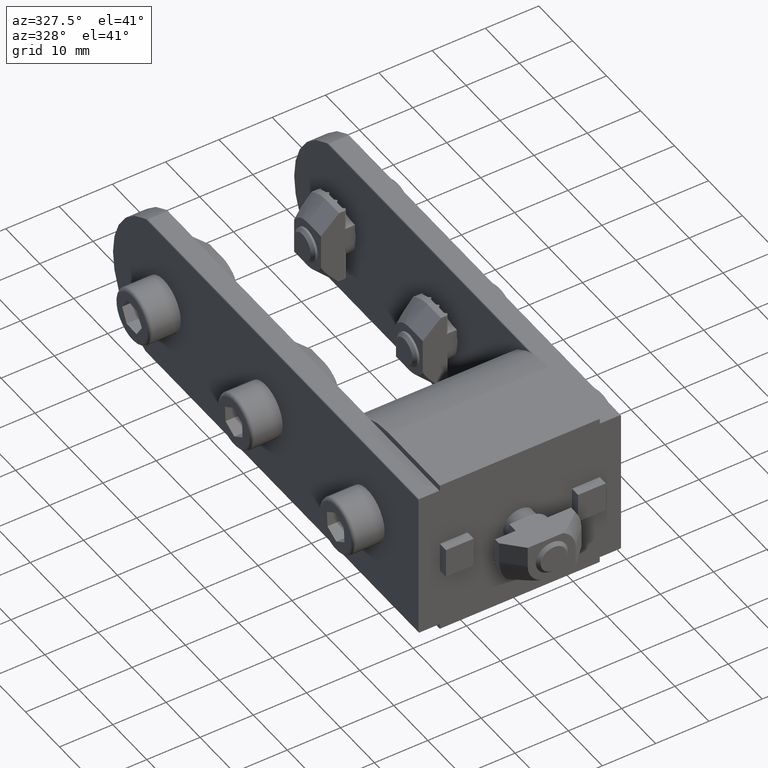
[diagram: clean part render]
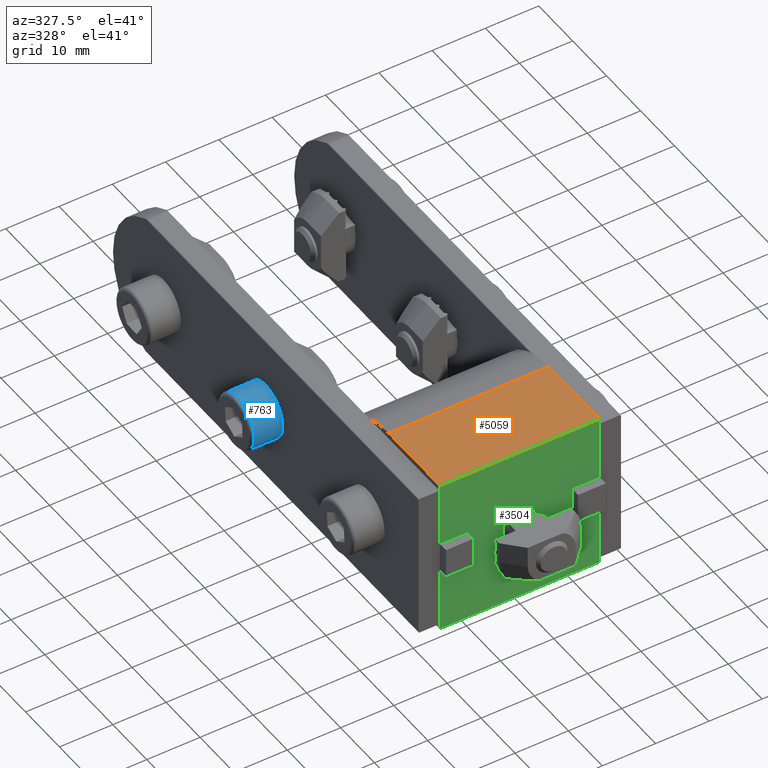
[diagram: same view with three faces highlighted in distinct colors, each labeled with its STEP entity id]
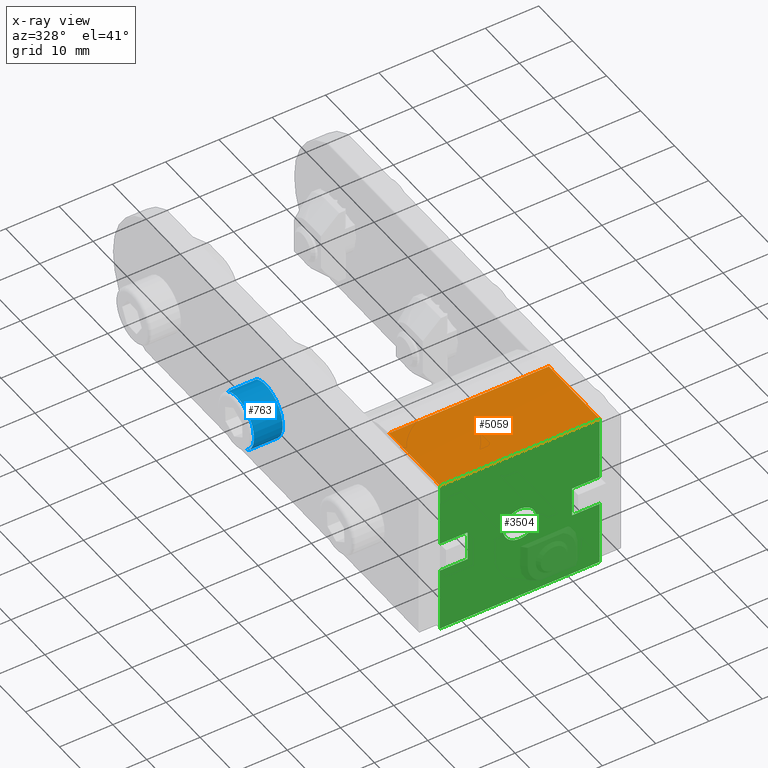
[diagram: x-ray of the same camera — body ghosted, the three highlighted faces saturated]
A machine part, auxiliary view with three faces highlighted in distinct colors.
The next image is the same camera in x-ray (body ghosted, the three faces saturated) — at least one of them is partly hidden behind the body in this view.
Their STEP definitions:

[orange] entity #5059 — the highlighted planar face has unit normal (0, -0, -1).
#673 = CARTESIAN_POINT ( 'NONE',  ( -15.00000000000000355, -7.500000000000000000, 0.000000000000000000 ) ) ;
#706 = CARTESIAN_POINT ( 'NONE',  ( -15.00000000000000355, 7.500000000000000000, 30.00000000000000000 ) ) ;
#787 = VECTOR ( 'NONE', #5470, 1000.000000000000000 ) ;
#793 = DIRECTION ( 'NONE',  ( 1.000000000000000000, 0.000000000000000000, 0.000000000000000000 ) ) ;
#876 = FACE_OUTER_BOUND ( 'NONE', #4983, .T. ) ;
#1312 = CARTESIAN_POINT ( 'NONE',  ( -15.00000000000000355, -7.500000000000000000, 30.00000000000000000 ) ) ;
#1337 = VECTOR ( 'NONE', #3285, 1000.000000000000000 ) ;
#1485 = ORIENTED_EDGE ( 'NONE', *, *, #2843, .F. ) ;
#1539 = LINE ( 'NONE', #4168, #1337 ) ;
#2032 = DIRECTION ( 'NONE',  ( -0.000000000000000000, -1.000000000000000000, -0.000000000000000000 ) ) ;
#2395 = CARTESIAN_POINT ( 'NONE',  ( -15.00000000000000355, -7.500000000000000000, 0.000000000000000000 ) ) ;
#2626 = VERTEX_POINT ( 'NONE', #706 ) ;
#2843 = EDGE_CURVE ( 'NONE', #3542, #4150, #1539, .T. ) ;
#2954 = CARTESIAN_POINT ( 'NONE',  ( -15.00000000000000355, 7.500000000000000000, 0.000000000000000000 ) ) ;
#3122 = CARTESIAN_POINT ( 'NONE',  ( -15.00000000000000355, -7.500000000000000000, 30.00000000000000000 ) ) ;
#3285 = DIRECTION ( 'NONE',  ( -0.000000000000000000, -0.000000000000000000, -1.000000000000000000 ) ) ;
#3499 = EDGE_CURVE ( 'NONE', #2626, #3542, #5245, .T. ) ;
#3505 = ORIENTED_EDGE ( 'NONE', *, *, #3499, .F. ) ;
#3542 = VERTEX_POINT ( 'NONE', #3122 ) ;
#3728 = LINE ( 'NONE', #5021, #787 ) ;
#3837 = PLANE ( 'NONE',  #4349 ) ;
#4150 = VERTEX_POINT ( 'NONE', #2395 ) ;
#4168 = CARTESIAN_POINT ( 'NONE',  ( -15.00000000000000355, -7.500000000000000000, 30.00000000000000000 ) ) ;
#4262 = ORIENTED_EDGE ( 'NONE', *, *, #5395, .T. ) ;
#4349 = AXIS2_PLACEMENT_3D ( 'NONE', #5672, #793, #5611 ) ;
#4455 = VECTOR ( 'NONE', #2032, 1000.000000000000000 ) ;
#4551 = VERTEX_POINT ( 'NONE', #2954 ) ;
#4586 = LINE ( 'NONE', #673, #4455 ) ;
#4741 = ORIENTED_EDGE ( 'NONE', *, *, #5493, .T. ) ;
#4806 = VECTOR ( 'NONE', #5487, 1000.000000000000000 ) ;
#4983 = EDGE_LOOP ( 'NONE', ( #4262, #1485, #3505, #4741 ) ) ;
#5021 = CARTESIAN_POINT ( 'NONE',  ( -15.00000000000000355, 7.500000000000000000, 30.00000000000000000 ) ) ;
#5059 = ADVANCED_FACE ( 'NONE', ( #876 ), #3837, .F. ) ;
#5245 = LINE ( 'NONE', #1312, #4806 ) ;
#5395 = EDGE_CURVE ( 'NONE', #4551, #4150, #4586, .T. ) ;
#5470 = DIRECTION ( 'NONE',  ( -0.000000000000000000, -0.000000000000000000, -1.000000000000000000 ) ) ;
#5487 = DIRECTION ( 'NONE',  ( -0.000000000000000000, -1.000000000000000000, -0.000000000000000000 ) ) ;
#5493 = EDGE_CURVE ( 'NONE', #2626, #4551, #3728, .T. ) ;
#5611 = DIRECTION ( 'NONE',  ( 0.000000000000000000, 0.000000000000000000, -1.000000000000000000 ) ) ;
#5672 = CARTESIAN_POINT ( 'NONE',  ( -15.00000000000000355, -7.500000000000000000, 30.00000000000000000 ) ) ;

[blue] entity #763 — the highlighted cylindrical surface (edge-blend (fillet) strip) has radius 5 mm, axis along (-1, -0, -0).
#153 = DIRECTION ( 'NONE',  ( 0.000000000000000000, 0.000000000000000000, 1.000000000000000000 ) ) ;
#351 = ORIENTED_EDGE ( 'NONE', *, *, #1939, .T. ) ;
#396 = CARTESIAN_POINT ( 'NONE',  ( -311.3400589040639375, 141.7785353260753709, 199.8677432571120960 ) ) ;
#418 = FACE_OUTER_BOUND ( 'NONE', #2535, .T. ) ;
#455 = VECTOR ( 'NONE', #4907, 1000.000000000000000 ) ;
#546 = ORIENTED_EDGE ( 'NONE', *, *, #4773, .T. ) ;
#763 = ADVANCED_FACE ( 'NONE', ( #418 ), #5194, .T. ) ;
#852 = DIRECTION ( 'NONE',  ( 0.000000000000000000, 0.000000000000000000, 1.000000000000000000 ) ) ;
#978 = CARTESIAN_POINT ( 'NONE',  ( -305.9400589040640170, 141.7785353260753709, 189.8677432571120960 ) ) ;
#987 = EDGE_CURVE ( 'NONE', #2103, #3142, #2690, .T. ) ;
#1151 = AXIS2_PLACEMENT_3D ( 'NONE', #5601, #2504, #4744 ) ;
#1265 = CARTESIAN_POINT ( 'NONE',  ( -311.3400589040639375, 141.7785353260753709, 189.8677432571120960 ) ) ;
#1402 = ORIENTED_EDGE ( 'NONE', *, *, #987, .F. ) ;
#1413 = AXIS2_PLACEMENT_3D ( 'NONE', #3013, #1775, #852 ) ;
#1576 = VERTEX_POINT ( 'NONE', #1265 ) ;
#1775 = DIRECTION ( 'NONE',  ( -1.000000000000000000, 0.000000000000000000, 0.000000000000000000 ) ) ;
#1939 = EDGE_CURVE ( 'NONE', #2103, #5182, #3990, .T. ) ;
#2103 = VERTEX_POINT ( 'NONE', #4251 ) ;
#2504 = DIRECTION ( 'NONE',  ( 1.000000000000000000, -0.000000000000000000, -0.000000000000000000 ) ) ;
#2535 = EDGE_LOOP ( 'NONE', ( #351, #546, #4993, #1402 ) ) ;
#2690 = LINE ( 'NONE', #3646, #4478 ) ;
#2953 = EDGE_CURVE ( 'NONE', #1576, #3142, #3075, .T. ) ;
#3013 = CARTESIAN_POINT ( 'NONE',  ( -305.9400589040640170, 141.7785353260753709, 194.8677432571120960 ) ) ;
#3074 = AXIS2_PLACEMENT_3D ( 'NONE', #4921, #3566, #153 ) ;
#3075 = CIRCLE ( 'NONE', #1151, 5.000000000000004441 ) ;
#3142 = VERTEX_POINT ( 'NONE', #396 ) ;
#3222 = LINE ( 'NONE', #978, #455 ) ;
#3566 = DIRECTION ( 'NONE',  ( -1.000000000000000000, 0.000000000000000000, 0.000000000000000000 ) ) ;
#3646 = CARTESIAN_POINT ( 'NONE',  ( -305.9400589040640170, 141.7785353260753709, 199.8677432571120960 ) ) ;
#3990 = CIRCLE ( 'NONE', #3074, 5.000000000000004441 ) ;
#4251 = CARTESIAN_POINT ( 'NONE',  ( -305.9400589040640170, 141.7785353260753709, 199.8677432571120960 ) ) ;
#4478 = VECTOR ( 'NONE', #5365, 1000.000000000000000 ) ;
#4744 = DIRECTION ( 'NONE',  ( 0.000000000000000000, 0.000000000000000000, 1.000000000000000000 ) ) ;
#4773 = EDGE_CURVE ( 'NONE', #5182, #1576, #3222, .T. ) ;
#4782 = CARTESIAN_POINT ( 'NONE',  ( -305.9400589040640170, 141.7785353260753709, 189.8677432571120960 ) ) ;
#4907 = DIRECTION ( 'NONE',  ( -1.000000000000000000, 0.000000000000000000, 0.000000000000000000 ) ) ;
#4921 = CARTESIAN_POINT ( 'NONE',  ( -305.9400589040640170, 141.7785353260753709, 194.8677432571120960 ) ) ;
#4993 = ORIENTED_EDGE ( 'NONE', *, *, #2953, .T. ) ;
#5182 = VERTEX_POINT ( 'NONE', #4782 ) ;
#5194 = CYLINDRICAL_SURFACE ( 'NONE', #1413, 5.000000000000004441 ) ;
#5365 = DIRECTION ( 'NONE',  ( -1.000000000000000000, 0.000000000000000000, 0.000000000000000000 ) ) ;
#5601 = CARTESIAN_POINT ( 'NONE',  ( -311.3400589040639375, 141.7785353260753709, 194.8677432571120960 ) ) ;

[green] entity #3504 — the highlighted planar face has unit normal (0, 1, -0).
#35 = EDGE_CURVE ( 'NONE', #560, #4866, #4142, .T. ) ;
#73 = ORIENTED_EDGE ( 'NONE', *, *, #710, .T. ) ;
#94 = DIRECTION ( 'NONE',  ( 0.000000000000000000, 0.000000000000000000, -1.000000000000000000 ) ) ;
#124 = EDGE_CURVE ( 'NONE', #2697, #5384, #4690, .T. ) ;
#149 = EDGE_CURVE ( 'NONE', #4336, #2426, #4743, .T. ) ;
#295 = ORIENTED_EDGE ( 'NONE', *, *, #149, .F. ) ;
#321 = DIRECTION ( 'NONE',  ( 1.000000000000000000, 0.000000000000000000, 0.000000000000000000 ) ) ;
#329 = ORIENTED_EDGE ( 'NONE', *, *, #5543, .F. ) ;
#340 = VECTOR ( 'NONE', #2549, 1000.000000000000000 ) ;
#352 = VECTOR ( 'NONE', #3307, 1000.000000000000000 ) ;
#378 = EDGE_CURVE ( 'NONE', #4866, #560, #445, .T. ) ;
#391 = VECTOR ( 'NONE', #1769, 1000.000000000000000 ) ;
#399 = CARTESIAN_POINT ( 'NONE',  ( -2.800000000000005151, -7.500000000000000000, 24.79999999999999716 ) ) ;
#445 = CIRCLE ( 'NONE', #1936, 3.124999999999999112 ) ;
#497 = ORIENTED_EDGE ( 'NONE', *, *, #1652, .T. ) ;
#506 = FACE_BOUND ( 'NONE', #2220, .T. ) ;
#560 = VERTEX_POINT ( 'NONE', #5084 ) ;
#566 = CARTESIAN_POINT ( 'NONE',  ( -2.800000000000007372, -7.500000000000000000, 30.00000000000000000 ) ) ;
#710 = EDGE_CURVE ( 'NONE', #4609, #3049, #5279, .T. ) ;
#761 = CARTESIAN_POINT ( 'NONE',  ( -2.800000000000005151, -7.500000000000000000, 24.79999999999999716 ) ) ;
#848 = ORIENTED_EDGE ( 'NONE', *, *, #2843, .T. ) ;
#898 = VECTOR ( 'NONE', #4122, 1000.000000000000000 ) ;
#1130 = DIRECTION ( 'NONE',  ( 1.000000000000000000, 0.000000000000000000, 0.000000000000000000 ) ) ;
#1337 = VECTOR ( 'NONE', #3285, 1000.000000000000000 ) ;
#1342 = CARTESIAN_POINT ( 'NONE',  ( 14.99999999999999645, -7.500000000000000000, 30.00000000000000000 ) ) ;
#1401 = PLANE ( 'NONE',  #3424 ) ;
#1539 = LINE ( 'NONE', #4168, #1337 ) ;
#1625 = LINE ( 'NONE', #5149, #3119 ) ;
#1652 = EDGE_CURVE ( 'NONE', #4150, #4419, #5095, .T. ) ;
#1670 = AXIS2_PLACEMENT_3D ( 'NONE', #3665, #3177, #94 ) ;
#1765 = ORIENTED_EDGE ( 'NONE', *, *, #35, .F. ) ;
#1769 = DIRECTION ( 'NONE',  ( 1.000000000000000000, 0.000000000000000000, 0.000000000000000000 ) ) ;
#1806 = VERTEX_POINT ( 'NONE', #399 ) ;
#1889 = VECTOR ( 'NONE', #2765, 1000.000000000000000 ) ;
#1900 = DIRECTION ( 'NONE',  ( 0.000000000000000000, 1.000000000000000000, 0.000000000000000000 ) ) ;
#1912 = CARTESIAN_POINT ( 'NONE',  ( 2.799999999999999822, -7.500000000000000000, 5.200000000000001066 ) ) ;
#1936 = AXIS2_PLACEMENT_3D ( 'NONE', #2789, #1940, #4132 ) ;
#1940 = DIRECTION ( 'NONE',  ( 0.000000000000000000, -1.000000000000000000, 0.000000000000000000 ) ) ;
#1957 = EDGE_LOOP ( 'NONE', ( #4090, #2940, #2541, #73, #5509, #3759, #295, #4007, #329, #4688, #848, #497 ) ) ;
#2102 = CARTESIAN_POINT ( 'NONE',  ( 14.99999999999999645, -7.500000000000000000, 0.000000000000000000 ) ) ;
#2162 = LINE ( 'NONE', #761, #2611 ) ;
#2167 = LINE ( 'NONE', #1342, #2980 ) ;
#2220 = EDGE_LOOP ( 'NONE', ( #2637, #1765 ) ) ;
#2283 = VECTOR ( 'NONE', #1130, 1000.000000000000000 ) ;
#2395 = CARTESIAN_POINT ( 'NONE',  ( -15.00000000000000355, -7.500000000000000000, 0.000000000000000000 ) ) ;
#2415 = CARTESIAN_POINT ( 'NONE',  ( 2.799999999999999822, -7.500000000000000000, 24.79999999999999716 ) ) ;
#2426 = VERTEX_POINT ( 'NONE', #2689 ) ;
#2459 = CARTESIAN_POINT ( 'NONE',  ( -2.800000000000000711, -7.500000000000000000, 5.200000000000001066 ) ) ;
#2541 = ORIENTED_EDGE ( 'NONE', *, *, #3305, .F. ) ;
#2549 = DIRECTION ( 'NONE',  ( 1.000000000000000000, 0.000000000000000000, 0.000000000000000000 ) ) ;
#2572 = EDGE_CURVE ( 'NONE', #5384, #4419, #3213, .T. ) ;
#2611 = VECTOR ( 'NONE', #4263, 1000.000000000000000 ) ;
#2637 = ORIENTED_EDGE ( 'NONE', *, *, #378, .F. ) ;
#2689 = CARTESIAN_POINT ( 'NONE',  ( 2.800000000000000266, -7.500000000000000000, 30.00000000000000000 ) ) ;
#2697 = VERTEX_POINT ( 'NONE', #4698 ) ;
#2763 = CARTESIAN_POINT ( 'NONE',  ( 14.99999999999999645, -7.500000000000000000, 30.00000000000000000 ) ) ;
#2765 = DIRECTION ( 'NONE',  ( -2.502005013428087080E-16, -0.000000000000000000, 1.000000000000000000 ) ) ;
#2789 = CARTESIAN_POINT ( 'NONE',  ( -3.469446951953614189E-15, -7.500000000000000000, 15.00000000000000000 ) ) ;
#2843 = EDGE_CURVE ( 'NONE', #3542, #4150, #1539, .T. ) ;
#2940 = ORIENTED_EDGE ( 'NONE', *, *, #124, .F. ) ;
#2980 = VECTOR ( 'NONE', #5270, 1000.000000000000000 ) ;
#3049 = VERTEX_POINT ( 'NONE', #2102 ) ;
#3119 = VECTOR ( 'NONE', #321, 1000.000000000000000 ) ;
#3122 = CARTESIAN_POINT ( 'NONE',  ( -15.00000000000000355, -7.500000000000000000, 30.00000000000000000 ) ) ;
#3149 = CARTESIAN_POINT ( 'NONE',  ( -2.800000000000005151, -7.500000000000000000, 24.79999999999999716 ) ) ;
#3177 = DIRECTION ( 'NONE',  ( 0.000000000000000000, -1.000000000000000000, 0.000000000000000000 ) ) ;
#3213 = LINE ( 'NONE', #2459, #898 ) ;
#3246 = CARTESIAN_POINT ( 'NONE',  ( -3.469446951953614189E-15, -7.500000000000000000, 11.87500000000000000 ) ) ;
#3285 = DIRECTION ( 'NONE',  ( -0.000000000000000000, -0.000000000000000000, -1.000000000000000000 ) ) ;
#3305 = EDGE_CURVE ( 'NONE', #4609, #2697, #4084, .T. ) ;
#3307 = DIRECTION ( 'NONE',  ( 2.502005013428085600E-16, 0.000000000000000000, 1.000000000000000000 ) ) ;
#3337 = CARTESIAN_POINT ( 'NONE',  ( -15.00000000000000355, -7.500000000000000000, 0.000000000000000000 ) ) ;
#3390 = DIRECTION ( 'NONE',  ( -1.000000000000000000, -0.000000000000000000, -1.548860246407863336E-16 ) ) ;
#3424 = AXIS2_PLACEMENT_3D ( 'NONE', #3973, #1900, #4843 ) ;
#3504 = ADVANCED_FACE ( 'NONE', ( #506, #5271 ), #1401, .F. ) ;
#3542 = VERTEX_POINT ( 'NONE', #3122 ) ;
#3558 = VERTEX_POINT ( 'NONE', #566 ) ;
#3577 = CARTESIAN_POINT ( 'NONE',  ( -15.00000000000000355, -7.500000000000000000, 30.00000000000000000 ) ) ;
#3606 = LINE ( 'NONE', #3577, #5012 ) ;
#3616 = EDGE_CURVE ( 'NONE', #1806, #4336, #5393, .T. ) ;
#3654 = CARTESIAN_POINT ( 'NONE',  ( 2.799999999999999822, -7.500000000000000000, 24.79999999999999716 ) ) ;
#3665 = CARTESIAN_POINT ( 'NONE',  ( -3.469446951953614189E-15, -7.500000000000000000, 15.00000000000000000 ) ) ;
#3696 = CARTESIAN_POINT ( 'NONE',  ( -2.800000000000002043, -7.500000000000000000, 5.199999999999998401 ) ) ;
#3759 = ORIENTED_EDGE ( 'NONE', *, *, #5375, .F. ) ;
#3973 = CARTESIAN_POINT ( 'NONE',  ( -15.00000000000000355, -7.500000000000000000, 30.00000000000000000 ) ) ;
#4007 = ORIENTED_EDGE ( 'NONE', *, *, #3616, .F. ) ;
#4084 = LINE ( 'NONE', #1912, #1889 ) ;
#4090 = ORIENTED_EDGE ( 'NONE', *, *, #2572, .F. ) ;
#4122 = DIRECTION ( 'NONE',  ( 8.340016711426956521E-17, 0.000000000000000000, -1.000000000000000000 ) ) ;
#4132 = DIRECTION ( 'NONE',  ( 0.000000000000000000, 0.000000000000000000, -1.000000000000000000 ) ) ;
#4142 = CIRCLE ( 'NONE', #1670, 3.124999999999999112 ) ;
#4150 = VERTEX_POINT ( 'NONE', #2395 ) ;
#4168 = CARTESIAN_POINT ( 'NONE',  ( -15.00000000000000355, -7.500000000000000000, 30.00000000000000000 ) ) ;
#4230 = EDGE_CURVE ( 'NONE', #3542, #3558, #1625, .T. ) ;
#4256 = CARTESIAN_POINT ( 'NONE',  ( -2.800000000000000711, -7.500000000000000000, 5.200000000000001066 ) ) ;
#4263 = DIRECTION ( 'NONE',  ( 4.170008355713475672E-16, -0.000000000000000000, -1.000000000000000000 ) ) ;
#4336 = VERTEX_POINT ( 'NONE', #3654 ) ;
#4365 = VERTEX_POINT ( 'NONE', #2763 ) ;
#4419 = VERTEX_POINT ( 'NONE', #4626 ) ;
#4496 = VECTOR ( 'NONE', #3390, 1000.000000000000000 ) ;
#4609 = VERTEX_POINT ( 'NONE', #4849 ) ;
#4626 = CARTESIAN_POINT ( 'NONE',  ( -2.800000000000000266, -7.500000000000000000, 0.000000000000000000 ) ) ;
#4688 = ORIENTED_EDGE ( 'NONE', *, *, #4230, .F. ) ;
#4690 = LINE ( 'NONE', #4256, #4496 ) ;
#4698 = CARTESIAN_POINT ( 'NONE',  ( 2.799999999999997158, -7.500000000000000000, 5.199999999999999289 ) ) ;
#4743 = LINE ( 'NONE', #2415, #352 ) ;
#4823 = CARTESIAN_POINT ( 'NONE',  ( -15.00000000000000355, -7.500000000000000000, 0.000000000000000000 ) ) ;
#4843 = DIRECTION ( 'NONE',  ( 0.000000000000000000, -0.000000000000000000, 1.000000000000000000 ) ) ;
#4849 = CARTESIAN_POINT ( 'NONE',  ( 2.800000000000001155, -7.500000000000000000, 6.858022075225179538E-16 ) ) ;
#4866 = VERTEX_POINT ( 'NONE', #3246 ) ;
#5012 = VECTOR ( 'NONE', #5332, 1000.000000000000000 ) ;
#5084 = CARTESIAN_POINT ( 'NONE',  ( -3.086744827220066456E-15, -7.500000000000000000, 18.12500000000000000 ) ) ;
#5095 = LINE ( 'NONE', #3337, #2283 ) ;
#5149 = CARTESIAN_POINT ( 'NONE',  ( -15.00000000000000355, -7.500000000000000000, 30.00000000000000000 ) ) ;
#5193 = EDGE_CURVE ( 'NONE', #4365, #3049, #2167, .T. ) ;
#5270 = DIRECTION ( 'NONE',  ( -0.000000000000000000, -0.000000000000000000, -1.000000000000000000 ) ) ;
#5271 = FACE_OUTER_BOUND ( 'NONE', #1957, .T. ) ;
#5279 = LINE ( 'NONE', #4823, #340 ) ;
#5332 = DIRECTION ( 'NONE',  ( 1.000000000000000000, 0.000000000000000000, 0.000000000000000000 ) ) ;
#5375 = EDGE_CURVE ( 'NONE', #2426, #4365, #3606, .T. ) ;
#5384 = VERTEX_POINT ( 'NONE', #3696 ) ;
#5393 = LINE ( 'NONE', #3149, #391 ) ;
#5509 = ORIENTED_EDGE ( 'NONE', *, *, #5193, .F. ) ;
#5543 = EDGE_CURVE ( 'NONE', #3558, #1806, #2162, .T. ) ;